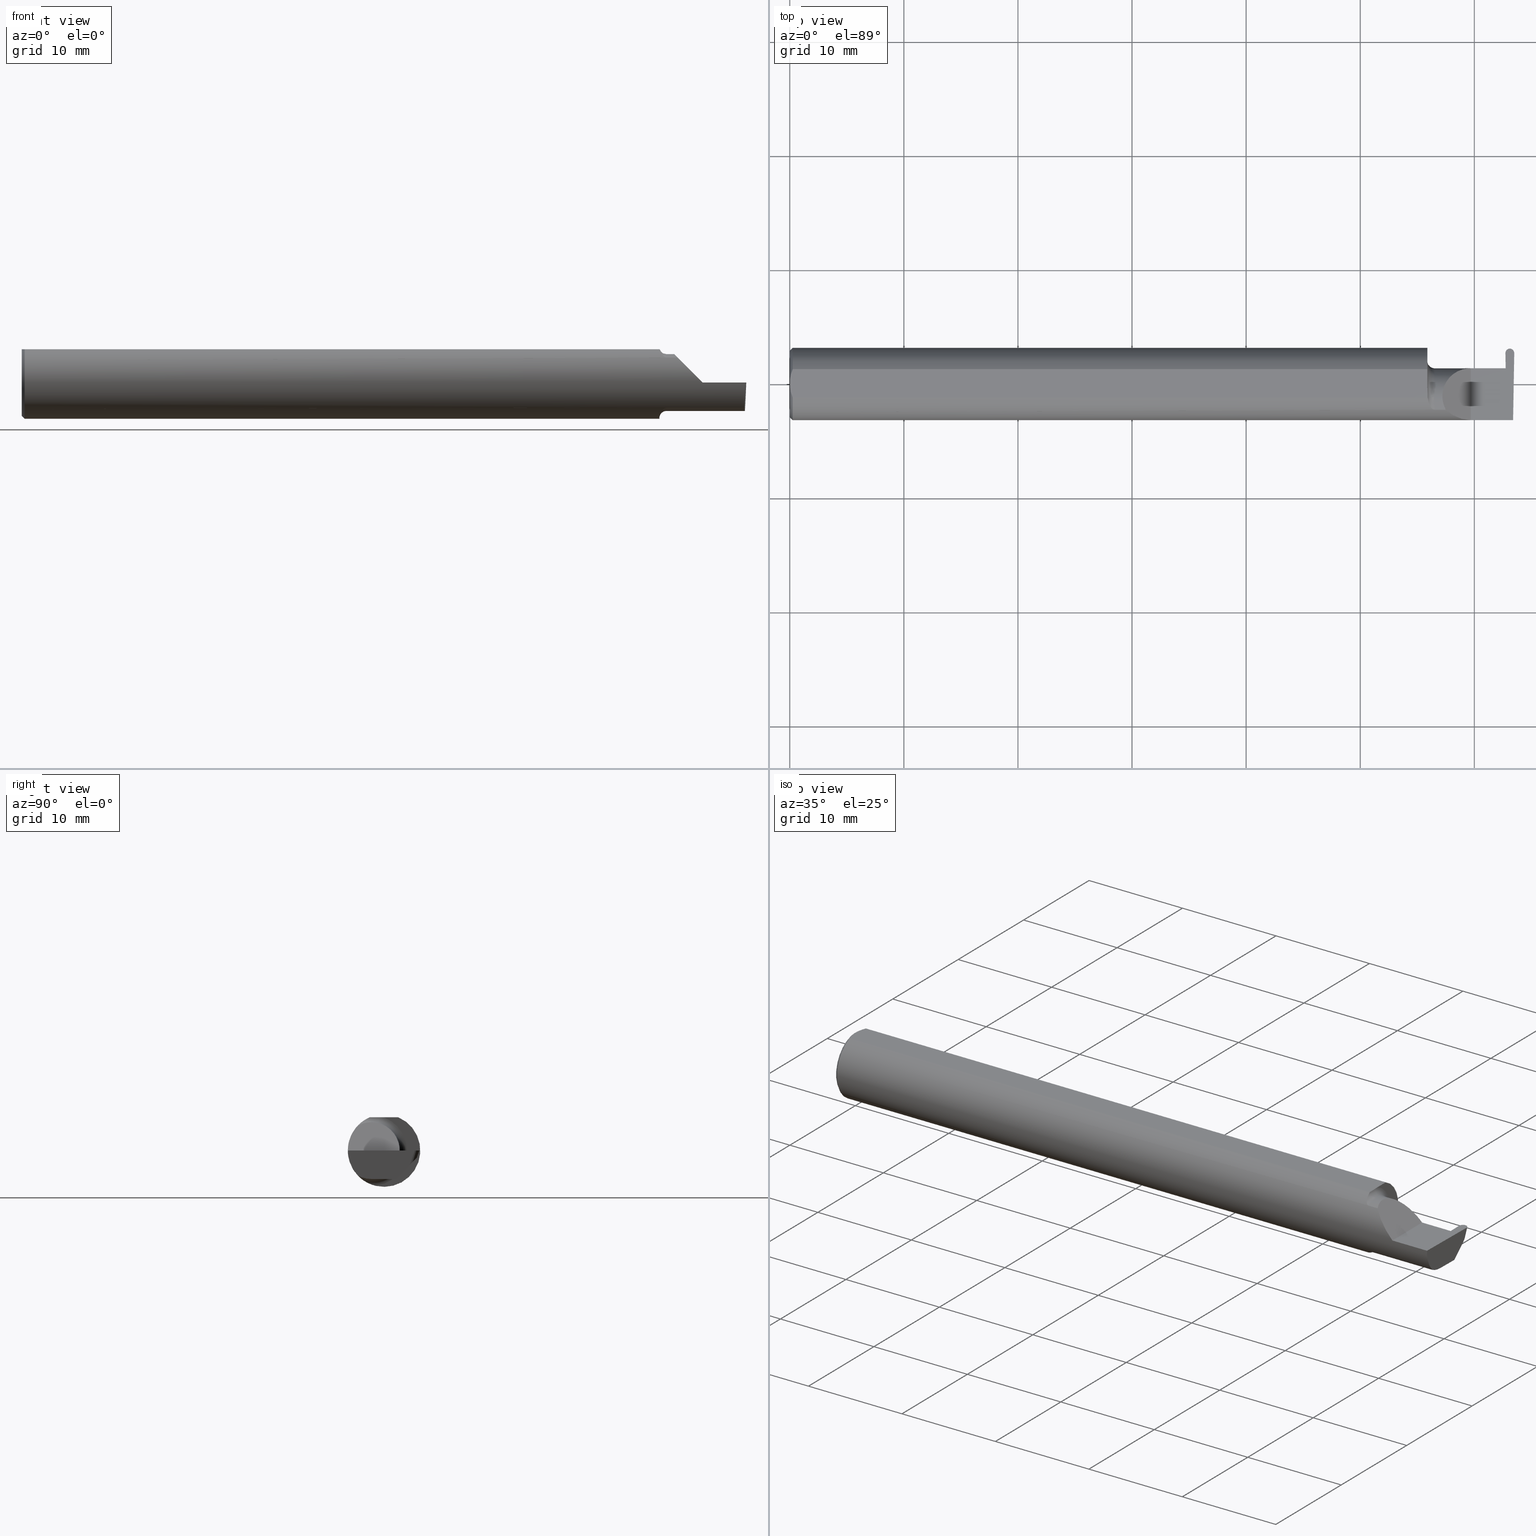
[diagram: canonical four-view strip — front | top / right | iso, engineering-drawing reading convention]
A machine part, canonical four-view strip (front | top / right | iso — engineering-drawing reading convention). The complete STEP part file that produces these views, byte-faithful:
ISO-10303-21;
HEADER;
FILE_DESCRIPTION (( 'STEP AP203' ),
    '1' );
FILE_NAME ('221936-GFR030Q-4.STEP',
    '2024-06-17T21:09:49',
    ( '' ),
    ( '' ),
    'SwSTEP 2.0',
    'SolidWorks 2022',
    '' );
FILE_SCHEMA (( 'CONFIG_CONTROL_DESIGN' ));
ENDSEC;

DATA;
#1 = CARTESIAN_POINT ( 'NONE',  ( 2.493303259308029318, 0.1129364828361203443, -0.02479965444492767193 ) ) ;
#2 = FACE_OUTER_BOUND ( 'NONE', #378, .T. ) ;
#3 = VERTEX_POINT ( 'NONE', #39 ) ;
#4 = PLANE ( 'NONE',  #380 ) ;
#5 = DIRECTION ( 'NONE',  ( -0.03867711768363032987, -0.3253245514560478280, -0.9448111011136607340 ) ) ;
#6 = ORIENTED_EDGE ( 'NONE', *, *, #9, .F. ) ;
#7 = CARTESIAN_POINT ( 'NONE',  ( 2.469484345974817696, 0.1057354023860208880, 0.000000000000000000 ) ) ;
#8 = DIRECTION ( 'NONE',  ( 1.000000000000000000, 0.000000000000000000, 0.000000000000000000 ) ) ;
#9 = EDGE_CURVE ( 'NONE', #68, #562, #184, .T. ) ;
#10 = ORIENTED_EDGE ( 'NONE', *, *, #283, .F. ) ;
#11 = DIRECTION ( 'NONE',  ( -1.000000000000000000, -1.584044490014838108E-16, -0.000000000000000000 ) ) ;
#12 = VECTOR ( 'NONE', #151, 39.37007874015748143 ) ;
#13 = EDGE_CURVE ( 'NONE', #128, #426, #22, .T. ) ;
#14 = DIRECTION ( 'NONE',  ( 0.000000000000000000, 0.000000000000000000, -1.000000000000000000 ) ) ;
#15 = ORIENTED_EDGE ( 'NONE', *, *, #61, .T. ) ;
#16 = CARTESIAN_POINT ( 'NONE',  ( 2.493664221452986052, -0.06028551311893171061, -0.09800000000000015643 ) ) ;
#17 = LINE ( 'NONE', #492, #534 ) ;
#18 = ORIENTED_EDGE ( 'NONE', *, *, #516, .F. ) ;
#19 = CARTESIAN_POINT ( 'NONE',  ( 2.463961723292897421, 0.05376127692546270320, -0.006836134426925991742 ) ) ;
#20 = DIRECTION ( 'NONE',  ( 0.000000000000000000, -0.03489949670250104552, -0.9993908270190957621 ) ) ;
#21 = ORIENTED_EDGE ( 'NONE', *, *, #61, .F. ) ;
#22 = CIRCLE ( 'NONE', #476, 0.09800000000000012867 ) ;
#23 = COORDINATED_UNIVERSAL_TIME_OFFSET ( 8, 0, .BEHIND. ) ;
#24 = CARTESIAN_POINT ( 'NONE',  ( 2.494820567471968786, -0.1250000000000000000, -0.03254916765648427357 ) ) ;
#25 = ORIENTED_EDGE ( 'NONE', *, *, #383, .T. ) ;
#26 = PERSON_AND_ORGANIZATION_ROLE ( 'design_owner' ) ;
#27 = LINE ( 'NONE', #79, #251 ) ;
#28 = ORIENTED_EDGE ( 'NONE', *, *, #316, .T. ) ;
#29 = B_SPLINE_CURVE_WITH_KNOTS ( 'NONE', 3,
 ( #157, #581, #530, #84, #36, #42 ),
 .UNSPECIFIED., .F., .F.,
 ( 4, 2, 4 ),
 ( 0.001061950514642623312, 0.001696734447512964709, 0.002331518380383306322 ),
 .UNSPECIFIED. ) ;
#30 = APPROVAL_STATUS ( 'not_yet_approved' ) ;
#31 = DIRECTION ( 'NONE',  ( 0.000000000000000000, 0.9455185755993167351, -0.3255681544571566999 ) ) ;
#32 = CYLINDRICAL_SURFACE ( 'NONE', #651, 0.09800000000000008704 ) ;
#33 = DIRECTION ( 'NONE',  ( 0.000000000000000000, 0.000000000000000000, -1.000000000000000000 ) ) ;
#34 = EDGE_CURVE ( 'NONE', #44, #296, #689, .T. ) ;
#35 = AXIS2_PLACEMENT_3D ( 'NONE', #391, #610, #122 ) ;
#36 = CARTESIAN_POINT ( 'NONE',  ( 1.541666659510484467E-16, -0.008419750986449443114, 0.1149999999999999356 ) ) ;
#37 = COORDINATED_UNIVERSAL_TIME_OFFSET ( 8, 0, .BEHIND. ) ;
#38 = CARTESIAN_POINT ( 'NONE',  ( 2.495957382595297869, -0.1250000000000000000, 0.000000000000000000 ) ) ;
#39 = CARTESIAN_POINT ( 'NONE',  ( 2.484590643401954679, 0.1219999999999999835, 0.000000000000000000 ) ) ;
#40 = CARTESIAN_POINT ( 'NONE',  ( 2.202426556614085484, -0.05801934803182666467, 0.1111534264545083334 ) ) ;
#41 = CC_DESIGN_PERSON_AND_ORGANIZATION_ASSIGNMENT ( #149, #528, ( #370 ) ) ;
#42 = CARTESIAN_POINT ( 'NONE',  ( 0.000000000000000000, 3.414809992080329023E-17, 0.1149999999999999217 ) ) ;
#43 = EDGE_CURVE ( 'NONE', #390, #138, #578, .T. ) ;
#44 = VERTEX_POINT ( 'NONE', #642 ) ;
#45 = CARTESIAN_POINT ( 'NONE',  ( 2.210996102358147475, -0.08116363444194610310, 0.09515685373905001521 ) ) ;
#46 = VECTOR ( 'NONE', #170, 39.37007874015748143 ) ;
#47 = AXIS2_PLACEMENT_3D ( 'NONE', #143, #623, #33 ) ;
#48 = DIRECTION ( 'NONE',  ( -0.7071067811865511255, 0.000000000000000000, 0.7071067811865439090 ) ) ;
#49 = DIRECTION ( 'NONE',  ( 0.000000000000000000, -0.3255681544571570885, -0.9455185755993166241 ) ) ;
#50 = ORIENTED_EDGE ( 'NONE', *, *, #495, .F. ) ;
#51 = CARTESIAN_POINT ( 'NONE',  ( 2.350000000000000089, -0.2500000000000000555, 1.836970198721028825E-17 ) ) ;
#52 = DIRECTION ( 'NONE',  ( 1.000000000000000000, 0.000000000000000000, 0.000000000000000000 ) ) ;
#53 = ORIENTED_EDGE ( 'NONE', *, *, #295, .F. ) ;
#54 = PRODUCT_DEFINITION_FORMATION_WITH_SPECIFIED_SOURCE ( 'ANY', '', #178, .NOT_KNOWN. ) ;
#55 = DIRECTION ( 'NONE',  ( 1.000000000000000000, 0.000000000000000000, -0.000000000000000000 ) ) ;
#56 = CARTESIAN_POINT ( 'NONE',  ( 2.481161349538949068, 0.07626679744728975807, -0.08582409597714681093 ) ) ;
#57 = ORIENTED_EDGE ( 'NONE', *, *, #419, .T. ) ;
#58 = CARTESIAN_POINT ( 'NONE',  ( 2.493948486141865484, -0.04399999999999965050, -0.09800000000000001765 ) ) ;
#59 = CARTESIAN_POINT ( 'NONE',  ( 2.225000000000000089, -0.09042045454545413752, 0.08630840862739540265 ) ) ;
#60 = VERTEX_POINT ( 'NONE', #572 ) ;
#61 = EDGE_CURVE ( 'NONE', #138, #100, #239, .T. ) ;
#62 = CARTESIAN_POINT ( 'NONE',  ( 2.205932841370987774, -0.07048791403321974514, -0.1034389270157553553 ) ) ;
#63 = LINE ( 'NONE', #327, #136 ) ;
#64 = VERTEX_POINT ( 'NONE', #691 ) ;
#65 = AXIS2_PLACEMENT_3D ( 'NONE', #454, #401, #584 ) ;
#66 = DIRECTION ( 'NONE',  ( 0.000000000000000000, 0.000000000000000000, 1.000000000000000000 ) ) ;
#67 = DIRECTION ( 'NONE',  ( 0.03867711768362944863, -0.3253245514560478835, -0.9448111011136606230 ) ) ;
#68 = VERTEX_POINT ( 'NONE', #199 ) ;
#69 = CARTESIAN_POINT ( 'NONE',  ( 0.01000000000000042348, 0.000000000000000000, 0.000000000000000000 ) ) ;
#70 = CARTESIAN_POINT ( 'NONE',  ( 2.224355642859858317, -0.01728409361947863543, 0.1256443571401404113 ) ) ;
#71 = ORIENTED_EDGE ( 'NONE', *, *, #692, .T. ) ;
#72 = APPLICATION_PROTOCOL_DEFINITION ( 'international standard', 'config_control_design', 1994, #415 ) ;
#73 = DIRECTION ( 'NONE',  ( -0.03549161113179501170, 0.03487750912278154980, 0.9987611851171729338 ) ) ;
#74 = ORIENTED_EDGE ( 'NONE', *, *, #13, .F. ) ;
#75 = CARTESIAN_POINT ( 'NONE',  ( 2.200000000000000178, 0.000000000000000000, 0.000000000000000000 ) ) ;
#76 = CIRCLE ( 'NONE', #47, 0.1149999999999997274 ) ;
#77 = ORIENTED_EDGE ( 'NONE', *, *, #620, .T. ) ;
#78 = CARTESIAN_POINT ( 'NONE',  ( 2.484734615000000257, 0.1136989410075409934, -0.02403719627350702631 ) ) ;
#79 = CARTESIAN_POINT ( 'NONE',  ( 2.470387390782552650, 0.05400000000000000633, 0.000000000000000000 ) ) ;
#80 = ORIENTED_EDGE ( 'NONE', *, *, #43, .T. ) ;
#81 = DATE_AND_TIME ( #626, #394 ) ;
#82 = ADVANCED_FACE ( 'NONE', ( #416 ), #32, .T. ) ;
#83 = LINE ( 'NONE', #244, #554 ) ;
#84 = CARTESIAN_POINT ( 'NONE',  ( 0.0009328476361608245343, -0.01672844127736827086, 0.1149999999999999217 ) ) ;
#85 = PERSON_AND_ORGANIZATION ( #508, #701 ) ;
#86 = DIRECTION ( 'NONE',  ( 0.000000000000000000, 1.000000000000000000, 0.000000000000000000 ) ) ;
#87 = VECTOR ( 'NONE', #73, 39.37007874015748143 ) ;
#88 = CC_DESIGN_APPROVAL ( #163, ( #294 ) ) ;
#89 = DIRECTION ( 'NONE',  ( 0.000000000000000000, 0.000000000000000000, -1.000000000000000000 ) ) ;
#90 = B_SPLINE_CURVE_WITH_KNOTS ( 'NONE', 3,
 ( #19, #115, #605, #376 ),
 .UNSPECIFIED., .F., .F.,
 ( 4, 4 ),
 ( 0.000000000000000000, 1.000000000000000000 ),
 .UNSPECIFIED. ) ;
#91 = EDGE_CURVE ( 'NONE', #44, #307, #29, .T. ) ;
#92 = LINE ( 'NONE', #269, #488 ) ;
#93 = ADVANCED_FACE ( 'NONE', ( #250 ), #680, .T. ) ;
#94 = ORIENTED_EDGE ( 'NONE', *, *, #137, .T. ) ;
#95 = DIRECTION ( 'NONE',  ( 1.000000000000000000, 1.584044490014838108E-16, 0.000000000000000000 ) ) ;
#96 = CARTESIAN_POINT ( 'NONE',  ( 2.204267307214414107, -0.06631395538221017405, 0.1063681193389255375 ) ) ;
#97 = TOROIDAL_SURFACE ( 'NONE', #624, 0.1230000000000000676, 0.02499999999999993894 ) ;
#98 =( GEOMETRIC_REPRESENTATION_CONTEXT ( 3 ) GLOBAL_UNCERTAINTY_ASSIGNED_CONTEXT ( ( #569 ) ) GLOBAL_UNIT_ASSIGNED_CONTEXT ( ( #453, #355, #521 ) ) REPRESENTATION_CONTEXT ( 'NONE', 'WORKASPACE' ) );
#99 = CARTESIAN_POINT ( 'NONE',  ( 2.476165970691971197, 0.1129364828361193451, -0.02479965444492871277 ) ) ;
#100 = VERTEX_POINT ( 'NONE', #103 ) ;
#101 = EDGE_CURVE ( 'NONE', #44, #114, #324, .T. ) ;
#102 = DIRECTION ( 'NONE',  ( 0.03547001781079530541, 0.000000000000000000, -0.9993707409347653003 ) ) ;
#103 = CARTESIAN_POINT ( 'NONE',  ( 2.263691591372603895, -0.09042045454545426242, 0.08630840862739529162 ) ) ;
#104 = ORIENTED_EDGE ( 'NONE', *, *, #470, .T. ) ;
#105 = CARTESIAN_POINT ( 'NONE',  ( 2.475584878715685111, 0.1219999999999998724, 1.127860089025957087E-18 ) ) ;
#106 = EDGE_LOOP ( 'NONE', ( #172, #140, #219, #224, #154, #467 ) ) ;
#107 = AXIS2_PLACEMENT_3D ( 'NONE', #403, #622, #570 ) ;
#108 = ORIENTED_EDGE ( 'NONE', *, *, #336, .F. ) ;
#109 = CONICAL_SURFACE ( 'NONE', #371, 0.1149999999999997274, 0.7853981633974407295 ) ;
#110 = ADVANCED_FACE ( 'NONE', ( #2 ), #212, .F. ) ;
#111 = CARTESIAN_POINT ( 'NONE',  ( 2.469318218598224313, 0.1152528334169432706, 1.895304614445361654E-18 ) ) ;
#112 = CARTESIAN_POINT ( 'NONE',  ( 2.480873837082679945, 0.1387967110607151167, 0.09577595931909234361 ) ) ;
#113 = ADVANCED_FACE ( 'NONE', ( #648 ), #109, .T. ) ;
#114 = VERTEX_POINT ( 'NONE', #389 ) ;
#115 = CARTESIAN_POINT ( 'NONE',  ( 2.464041297651076157, 0.05384085128364179962, -0.004557422951283986688 ) ) ;
#116 = CARTESIAN_POINT ( 'NONE',  ( 0.000000000000000000, 0.04898979485566374442, 0.1149999999999999217 ) ) ;
#117 = ORIENTED_EDGE ( 'NONE', *, *, #607, .F. ) ;
#118 = CARTESIAN_POINT ( 'NONE',  ( 2.473883320168691835, 0.03973613728104883475, -0.09800000000000000377 ) ) ;
#119 = FACE_OUTER_BOUND ( 'NONE', #413, .T. ) ;
#120 = ORIENTED_EDGE ( 'NONE', *, *, #546, .T. ) ;
#121 = CIRCLE ( 'NONE', #523, 0.1230000000000000676 ) ;
#122 = DIRECTION ( 'NONE',  ( 0.000000000000000000, 0.000000000000000000, 1.000000000000000000 ) ) ;
#123 = DIRECTION ( 'NONE',  ( 0.000000000000000000, -0.9455185755993167351, 0.3255681544571566999 ) ) ;
#124 = ORIENTED_EDGE ( 'NONE', *, *, #484, .T. ) ;
#125 = DIRECTION ( 'NONE',  ( -1.000000000000000000, -1.584044490014838108E-16, -0.000000000000000000 ) ) ;
#126 = CARTESIAN_POINT ( 'NONE',  ( 2.473987104431409012, -0.04400000000000004602, -0.09800000000000005929 ) ) ;
#127 = B_SPLINE_CURVE_WITH_KNOTS ( 'NONE', 3,
 ( #637, #40, #96, #422, #45, #263, #698, #474, #209, #271 ),
 .UNSPECIFIED., .F., .F.,
 ( 4, 2, 2, 2, 4 ),
 ( 5.067393806054781801E-07, 0.0007430328995834715403, 0.001114295979684904988, 0.001299927519735621277, 0.001485559059786337567 ),
 .UNSPECIFIED. ) ;
#128 = VERTEX_POINT ( 'NONE', #59 ) ;
#129 = LINE ( 'NONE', #563, #192 ) ;
#130 = CARTESIAN_POINT ( 'NONE',  ( 2.200000000000000178, -0.02763636363636349721, -0.1219066503721543682 ) ) ;
#131 = EDGE_LOOP ( 'NONE', ( #399, #74, #643, #94, #433, #354, #175, #538, #182, #179 ) ) ;
#132 = AXIS2_PLACEMENT_3D ( 'NONE', #606, #8, #14 ) ;
#133 = ADVANCED_FACE ( 'NONE', ( #282 ), #342, .T. ) ;
#134 = VECTOR ( 'NONE', #183, 39.37007874015748854 ) ;
#135 = FACE_OUTER_BOUND ( 'NONE', #608, .T. ) ;
#136 = VECTOR ( 'NONE', #218, 39.37007874015748854 ) ;
#137 = EDGE_CURVE ( 'NONE', #100, #509, #313, .T. ) ;
#138 = VERTEX_POINT ( 'NONE', #438 ) ;
#139 = DIRECTION ( 'NONE',  ( 0.000000000000000000, -0.7071067811865514585, 0.7071067811865435759 ) ) ;
#140 = ORIENTED_EDGE ( 'NONE', *, *, #187, .T. ) ;
#141 = EDGE_LOOP ( 'NONE', ( #328, #321, #288, #28, #325 ) ) ;
#142 = DATE_AND_TIME ( #411, #667 ) ;
#143 = CARTESIAN_POINT ( 'NONE',  ( 0.000000000000000000, 0.000000000000000000, 0.000000000000000000 ) ) ;
#144 = ORIENTED_EDGE ( 'NONE', *, *, #43, .F. ) ;
#145 = DATE_TIME_ROLE ( 'classification_date' ) ;
#146 = CARTESIAN_POINT ( 'NONE',  ( 1.642610067308552155E-16, 0.01684316307400865464, 0.1149999999999999217 ) ) ;
#147 = DIRECTION ( 'NONE',  ( 0.000000000000000000, -1.000000000000000000, 0.000000000000000000 ) ) ;
#148 = CARTESIAN_POINT ( 'NONE',  ( 2.672413070268786939, -0.04399999999999965050, -0.09800000000000001765 ) ) ;
#149 = PERSON_AND_ORGANIZATION ( #508, #701 ) ;
#150 = CARTESIAN_POINT ( 'NONE',  ( 2.471482284735846857, 0.08893015498921685857, -0.04880598229183146647 ) ) ;
#151 = DIRECTION ( 'NONE',  ( -0.03867711768363032293, -0.3253245514560478280, -0.9448111011136606230 ) ) ;
#152 = AXIS2_PLACEMENT_3D ( 'NONE', #302, #306, #348 ) ;
#153 =( BOUNDED_CURVE ( )  B_SPLINE_CURVE ( 3, ( #480, #1, #323, #695 ),
 .UNSPECIFIED., .F., .T. ) 
 B_SPLINE_CURVE_WITH_KNOTS ( ( 4, 4 ),
 ( 3.177640875404656562, 4.698656506723038362 ),
 .UNSPECIFIED. ) 
 CURVE ( )  GEOMETRIC_REPRESENTATION_ITEM ( )  RATIONAL_B_SPLINE_CURVE ( ( 1.000000000000000000, 0.8163240481326591302, 0.8163240481326591302, 1.000000000000000000 ) ) 
 REPRESENTATION_ITEM ( '' )  );
#154 = ORIENTED_EDGE ( 'NONE', *, *, #482, .F. ) ;
#155 = PERSON_AND_ORGANIZATION ( #508, #701 ) ;
#156 = DIRECTION ( 'NONE',  ( -0.7071067811865439090, 0.000000000000000000, -0.7071067811865511255 ) ) ;
#157 = CARTESIAN_POINT ( 'NONE',  ( 0.01000000000000042348, -0.04898979485566374442, 0.1149999999999999217 ) ) ;
#158 = EDGE_LOOP ( 'NONE', ( #490, #362, #347, #547, #237 ) ) ;
#159 = CARTESIAN_POINT ( 'NONE',  ( 2.214104893754833991, -0.08507551663519469232, -0.09161800969921159166 ) ) ;
#160 = VERTEX_POINT ( 'NONE', #663 ) ;
#161 = EDGE_CURVE ( 'NONE', #532, #429, #63, .T. ) ;
#162 = ORIENTED_EDGE ( 'NONE', *, *, #187, .F. ) ;
#163 = APPROVAL ( #30, 'UNSPECIFIED' ) ;
#164 = LINE ( 'NONE', #644, #223 ) ;
#165 = LOCAL_TIME ( 14, 9, 49.00000000000000000, #37 ) ;
#166 = ADVANCED_FACE ( 'NONE', ( #392 ), #431, .F. ) ;
#167 = DIRECTION ( 'NONE',  ( -1.000000000000000000, -1.584044490014838108E-16, -0.000000000000000000 ) ) ;
#168 = AXIS2_PLACEMENT_3D ( 'NONE', #420, #424, #49 ) ;
#169 = ORIENTED_EDGE ( 'NONE', *, *, #101, .F. ) ;
#170 = DIRECTION ( 'NONE',  ( 1.000000000000000000, -0.000000000000000000, -0.000000000000000000 ) ) ;
#171 = FACE_OUTER_BOUND ( 'NONE', #335, .T. ) ;
#172 = ORIENTED_EDGE ( 'NONE', *, *, #101, .T. ) ;
#173 = CARTESIAN_POINT ( 'NONE',  ( 2.470630317148074795, 0.05376127692545597941, -0.006836134426923960380 ) ) ;
#174 = LINE ( 'NONE', #497, #653 ) ;
#175 = ORIENTED_EDGE ( 'NONE', *, *, #557, .F. ) ;
#176 = FACE_OUTER_BOUND ( 'NONE', #517, .T. ) ;
#177 = CARTESIAN_POINT ( 'NONE',  ( 2.493948486141865484, -0.04399999999999965050, -0.09800000000000001765 ) ) ;
#178 = PRODUCT ( '221936-GFR030Q-4', '221936-GFR030Q-4', '', ( #397 ) ) ;
#179 = ORIENTED_EDGE ( 'NONE', *, *, #546, .F. ) ;
#180 = AXIS2_PLACEMENT_3D ( 'NONE', #412, #139, #196 ) ;
#181 = CARTESIAN_POINT ( 'NONE',  ( 2.470630317148074795, 0.05376127692545597941, -0.006836134426923960380 ) ) ;
#182 = ORIENTED_EDGE ( 'NONE', *, *, #419, .F. ) ;
#183 = DIRECTION ( 'NONE',  ( -0.03867711768362944169, 0.3253245514560478280, 0.9448111011136606230 ) ) ;
#184 =( BOUNDED_CURVE ( )  B_SPLINE_CURVE ( 3, ( #410, #524, #312, #421 ),
 .UNSPECIFIED., .F., .T. ) 
 B_SPLINE_CURVE_WITH_KNOTS ( ( 4, 4 ),
 ( 1.677524580234105667, 3.253450286950869685 ),
 .UNSPECIFIED. ) 
 CURVE ( )  GEOMETRIC_REPRESENTATION_ITEM ( )  RATIONAL_B_SPLINE_CURVE ( ( 1.000000000000000000, 0.8035272986452609567, 0.8035272986452609567, 1.000000000000000000 ) ) 
 REPRESENTATION_ITEM ( '' )  );
#185 = LINE ( 'NONE', #627, #393 ) ;
#186 = ORIENTED_EDGE ( 'NONE', *, *, #586, .T. ) ;
#187 = EDGE_CURVE ( 'NONE', #114, #407, #225, .T. ) ;
#188 = LINE ( 'NONE', #675, #598 ) ;
#189 = EDGE_CURVE ( 'NONE', #440, #234, #445, .T. ) ;
#190 = ORIENTED_EDGE ( 'NONE', *, *, #586, .F. ) ;
#191 = LINE ( 'NONE', #301, #134 ) ;
#192 = VECTOR ( 'NONE', #235, 39.37007874015748143 ) ;
#193 = LINE ( 'NONE', #408, #87 ) ;
#194 = CARTESIAN_POINT ( 'NONE',  ( 0.01000000000000042348, 0.000000000000000000, 0.000000000000000000 ) ) ;
#195 = COORDINATED_UNIVERSAL_TIME_OFFSET ( 8, 0, .BEHIND. ) ;
#196 = DIRECTION ( 'NONE',  ( 0.000000000000000000, -0.7071067811865435759, -0.7071067811865514585 ) ) ;
#197 = DIRECTION ( 'NONE',  ( 1.000000000000000000, 0.000000000000000000, 0.000000000000000000 ) ) ;
#198 = DIRECTION ( 'NONE',  ( 0.000000000000000000, 0.000000000000000000, -1.000000000000000000 ) ) ;
#199 = CARTESIAN_POINT ( 'NONE',  ( 2.499984884025182375, 0.1057354023860208464, 0.000000000000000000 ) ) ;
#200 = SHAPE_DEFINITION_REPRESENTATION ( #449, #596 ) ;
#201 = LINE ( 'NONE', #535, #418 ) ;
#202 = VECTOR ( 'NONE', #358, 39.37007874015748143 ) ;
#203 = DIRECTION ( 'NONE',  ( -1.000000000000000000, -1.584044490014838108E-16, -0.000000000000000000 ) ) ;
#204 = FACE_OUTER_BOUND ( 'NONE', #455, .T. ) ;
#205 = DATE_AND_TIME ( #694, #541 ) ;
#206 = CARTESIAN_POINT ( 'NONE',  ( 2.470754586044551893, 0.1028225311217308702, -0.03491360615931730221 ) ) ;
#207 = CC_DESIGN_PERSON_AND_ORGANIZATION_ASSIGNMENT ( #305, #681, ( #294 ) ) ;
#208 = ORIENTED_EDGE ( 'NONE', *, *, #243, .T. ) ;
#209 = CARTESIAN_POINT ( 'NONE',  ( 2.222488493957806899, -0.09042045454585179165, 0.08630840862697893023 ) ) ;
#210 = VERTEX_POINT ( 'NONE', #177 ) ;
#211 = DIRECTION ( 'NONE',  ( -0.001239419280281402755, 0.9999992319196288060, 0.000000000000000000 ) ) ;
#212 = PLANE ( 'NONE',  #406 ) ;
#213 = EDGE_CURVE ( 'NONE', #60, #566, #333, .T. ) ;
#214 = APPROVAL ( #665, 'UNSPECIFIED' ) ;
#215 = ORIENTED_EDGE ( 'NONE', *, *, #690, .F. ) ;
#216 = EDGE_CURVE ( 'NONE', #128, #100, #174, .T. ) ;
#217 = CARTESIAN_POINT ( 'NONE',  ( -3.937007874019685528E-05, 0.03973613728104881393, -0.09800000000000001765 ) ) ;
#218 = DIRECTION ( 'NONE',  ( -0.03701368837992279753, 0.7066222423871550973, 0.7066222423871629799 ) ) ;
#219 = ORIENTED_EDGE ( 'NONE', *, *, #283, .T. ) ;
#220 = CARTESIAN_POINT ( 'NONE',  ( 2.484590643401954679, 0.1219999999999999835, 0.000000000000000000 ) ) ;
#221 = CARTESIAN_POINT ( 'NONE',  ( 0.000000000000000000, 0.000000000000000000, 0.000000000000000000 ) ) ;
#222 = VECTOR ( 'NONE', #548, 39.37007874015747433 ) ;
#223 = VECTOR ( 'NONE', #11, 39.37007874015748143 ) ;
#224 = ORIENTED_EDGE ( 'NONE', *, *, #189, .T. ) ;
#225 = B_SPLINE_CURVE_WITH_KNOTS ( 'NONE', 3,
 ( #385, #279, #599, #612, #338, #227 ),
 .UNSPECIFIED., .F., .F.,
 ( 4, 2, 4 ),
 ( 0.009319464280412737694, 0.009934044568948304649, 0.01054862485748387160 ),
 .UNSPECIFIED. ) ;
#226 = CARTESIAN_POINT ( 'NONE',  ( 2.217439721641150552, -0.08786602687380729027, -0.08891702384475598520 ) ) ;
#227 = CARTESIAN_POINT ( 'NONE',  ( 2.200000000000000178, -0.0003651515414568704703, 0.1149999999999999217 ) ) ;
#228 = ORIENTED_EDGE ( 'NONE', *, *, #383, .F. ) ;
#229 =( BOUNDED_CURVE ( )  B_SPLINE_CURVE ( 3, ( #220, #105, #111, #7 ),
 .UNSPECIFIED., .F., .T. ) 
 B_SPLINE_CURVE_WITH_KNOTS ( ( 4, 4 ),
 ( 6.171327673818510995, 7.747253380535275902 ),
 .UNSPECIFIED. ) 
 CURVE ( )  GEOMETRIC_REPRESENTATION_ITEM ( )  RATIONAL_B_SPLINE_CURVE ( ( 1.000000000000000000, 0.8035272986452608457, 0.8035272986452608457, 1.000000000000000000 ) ) 
 REPRESENTATION_ITEM ( '' )  );
#230 = EDGE_CURVE ( 'NONE', #566, #429, #17, .T. ) ;
#231 = DIRECTION ( 'NONE',  ( 0.000000000000000000, 0.000000000000000000, -1.000000000000000000 ) ) ;
#232 = LINE ( 'NONE', #236, #679 ) ;
#233 = ADVANCED_FACE ( 'NONE', ( #171 ), #339, .T. ) ;
#234 = VERTEX_POINT ( 'NONE', #551 ) ;
#235 = DIRECTION ( 'NONE',  ( -0.01745240643727679480, -0.9998476951563912696, 0.000000000000000000 ) ) ;
#236 = CARTESIAN_POINT ( 'NONE',  ( 2.495862202245279438, 0.04836703517574777317, -0.08936910210530095433 ) ) ;
#237 = ORIENTED_EDGE ( 'NONE', *, *, #671, .T. ) ;
#238 = PLANE ( 'NONE',  #65 ) ;
#239 =( BOUNDED_CURVE ( )  B_SPLINE_CURVE ( 3, ( #310, #464, #489, #520 ),
 .UNSPECIFIED., .F., .T. ) 
 B_SPLINE_CURVE_WITH_KNOTS ( ( 4, 4 ),
 ( 4.712388980384689674, 5.474523801125207534 ),
 .UNSPECIFIED. ) 
 CURVE ( )  GEOMETRIC_REPRESENTATION_ITEM ( )  RATIONAL_B_SPLINE_CURVE ( ( 1.000000000000000000, 0.9521787881681380572, 0.9521787881681380572, 1.000000000000000000 ) ) 
 REPRESENTATION_ITEM ( '' )  );
#240 = ADVANCED_FACE ( 'NONE', ( #119 ), #97, .F. ) ;
#241 = ORIENTED_EDGE ( 'NONE', *, *, #360, .T. ) ;
#242 =( LENGTH_UNIT ( ) NAMED_UNIT ( * ) SI_UNIT ( $, .METRE. ) );
#243 = EDGE_CURVE ( 'NONE', #303, #555, #232, .T. ) ;
#244 = CARTESIAN_POINT ( 'NONE',  ( 2.469499189848784582, 0.1590914008552682946, 0.02135526357422078830 ) ) ;
#245 = ORIENTED_EDGE ( 'NONE', *, *, #34, .F. ) ;
#246 = MANIFOLD_SOLID_BREP ( 'Radii', #595 ) ;
#247 = APPROVAL_ROLE ( '' ) ;
#248 = CARTESIAN_POINT ( 'NONE',  ( 2.672413070268786939, -0.04399999999999965050, -0.09800000000000001765 ) ) ;
#249 = CC_DESIGN_APPROVAL ( #214, ( #54 ) ) ;
#250 = FACE_OUTER_BOUND ( 'NONE', #549, .T. ) ;
#251 = VECTOR ( 'NONE', #361, 39.37007874015748143 ) ;
#252 = APPLICATION_PROTOCOL_DEFINITION ( 'international standard', 'config_control_design', 1994, #560 ) ;
#253 = AXIS2_PLACEMENT_3D ( 'NONE', #278, #66, #55 ) ;
#254 = CARTESIAN_POINT ( 'NONE',  ( 2.493976598891079810, -0.1128945894460737925, -0.06276352435079125824 ) ) ;
#255 = CARTESIAN_POINT ( 'NONE',  ( 2.200000000000000178, 0.1249999999999999861, 0.000000000000000000 ) ) ;
#256 = PLANE ( 'NONE',  #180 ) ;
#257 = VERTEX_POINT ( 'NONE', #181 ) ;
#258 = APPROVAL_ROLE ( '' ) ;
#259 = CARTESIAN_POINT ( 'NONE',  ( 2.484734615000000257, 0.1136989410075409934, -0.02403719627350702631 ) ) ;
#260 = DIRECTION ( 'NONE',  ( 1.000000000000000000, 1.584044490014838108E-16, 0.000000000000000000 ) ) ;
#261 = CALENDAR_DATE ( 2024, 17, 6 ) ;
#262 = AXIS2_PLACEMENT_3D ( 'NONE', #255, #260, #374 ) ;
#263 = CARTESIAN_POINT ( 'NONE',  ( 2.214945076695470583, -0.08578123596776233983, 0.09094459933486033487 ) ) ;
#264 = AXIS2_PLACEMENT_3D ( 'NONE', #194, #197, #89 ) ;
#265 = ORIENTED_EDGE ( 'NONE', *, *, #91, .T. ) ;
#266 = ADVANCED_FACE ( 'NONE', ( #616 ), #545, .T. ) ;
#267 = DIRECTION ( 'NONE',  ( -1.000000000000000000, -0.000000000000000000, -0.000000000000000000 ) ) ;
#268 = APPROVAL_DATE_TIME ( #363, #214 ) ;
#269 = CARTESIAN_POINT ( 'NONE',  ( -3.937007874019685528E-05, 0.1219999999999999835, 0.000000000000000000 ) ) ;
#270 = ORIENTED_EDGE ( 'NONE', *, *, #671, .F. ) ;
#271 = CARTESIAN_POINT ( 'NONE',  ( 2.225000000000000089, -0.09042045454545413752, 0.08630840862739540265 ) ) ;
#272 = APPROVAL ( #473, 'UNSPECIFIED' ) ;
#273 = DIRECTION ( 'NONE',  ( -1.000000000000000000, -1.584044490014838108E-16, -0.000000000000000000 ) ) ;
#274 = ORIENTED_EDGE ( 'NONE', *, *, #189, .F. ) ;
#275 = LINE ( 'NONE', #285, #512 ) ;
#276 = CARTESIAN_POINT ( 'NONE',  ( 2.263691591372603895, -0.09042045454545426242, 0.08630840862739529162 ) ) ;
#277 = ORIENTED_EDGE ( 'NONE', *, *, #344, .T. ) ;
#278 = CARTESIAN_POINT ( 'NONE',  ( 2.753179778023443269, 0.1250000000000000278, 0.1149999999999999217 ) ) ;
#279 = CARTESIAN_POINT ( 'NONE',  ( 2.201395249340555527, -0.04087966525207987339, 0.1149999999999999356 ) ) ;
#280 = ORIENTED_EDGE ( 'NONE', *, *, #638, .T. ) ;
#281 = CARTESIAN_POINT ( 'NONE',  ( 2.225000000000000089, -0.09042045454545417915, -0.08630840862739537489 ) ) ;
#282 = FACE_OUTER_BOUND ( 'NONE', #158, .T. ) ;
#283 = EDGE_CURVE ( 'NONE', #407, #440, #188, .T. ) ;
#284 = ORIENTED_EDGE ( 'NONE', *, *, #557, .T. ) ;
#285 = CARTESIAN_POINT ( 'NONE',  ( 0.000000000000000000, 0.000000000000000000, -0.1149999999999997274 ) ) ;
#286 = ADVANCED_FACE ( 'NONE', ( #135 ), #511, .F. ) ;
#287 = CARTESIAN_POINT ( 'NONE',  ( 2.225000000000000089, -0.04400000000000009459, 0.000000000000000000 ) ) ;
#288 = ORIENTED_EDGE ( 'NONE', *, *, #161, .F. ) ;
#289 = LINE ( 'NONE', #506, #439 ) ;
#290 = CARTESIAN_POINT ( 'NONE',  ( 2.350000000000000089, 0.05400000000000000633, 3.673940397442056417E-17 ) ) ;
#291 = ORIENTED_EDGE ( 'NONE', *, *, #243, .F. ) ;
#292 = EDGE_CURVE ( 'NONE', #625, #532, #83, .T. ) ;
#293 = FACE_OUTER_BOUND ( 'NONE', #141, .T. ) ;
#294 = PRODUCT_DEFINITION ( 'UNKNOWN', '', #54, #304 ) ;
#295 = EDGE_CURVE ( 'NONE', #683, #60, #27, .T. ) ;
#296 = VERTEX_POINT ( 'NONE', #309 ) ;
#297 = PERSON_AND_ORGANIZATION ( #508, #701 ) ;
#298 = AXIS2_PLACEMENT_3D ( 'NONE', #248, #404, #353 ) ;
#299 = CARTESIAN_POINT ( 'NONE',  ( 2.350000000000000089, -0.2500000000000000555, 1.836970198721028825E-17 ) ) ;
#300 = ORIENTED_EDGE ( 'NONE', *, *, #668, .T. ) ;
#301 = CARTESIAN_POINT ( 'NONE',  ( 2.480873837082679945, 0.1532631452673846595, 0.09079476655589784062 ) ) ;
#302 = CARTESIAN_POINT ( 'NONE',  ( 2.500000000000000000, -0.2500000000000000555, 0.000000000000000000 ) ) ;
#303 = VERTEX_POINT ( 'NONE', #567 ) ;
#304 = DESIGN_CONTEXT ( 'detailed design', #415, 'design' ) ;
#305 = PERSON_AND_ORGANIZATION ( #508, #701 ) ;
#306 = DIRECTION ( 'NONE',  ( -1.224646799147352468E-16, 0.000000000000000000, -1.000000000000000000 ) ) ;
#307 = VERTEX_POINT ( 'NONE', #522 ) ;
#308 = VECTOR ( 'NONE', #561, 39.37007874015748143 ) ;
#309 = CARTESIAN_POINT ( 'NONE',  ( 0.01000000000000042348, 0.000000000000000000, -0.1250000000000000000 ) ) ;
#310 = CARTESIAN_POINT ( 'NONE',  ( 2.350000000000000089, -0.1250000000000000278, 1.836970198721028825E-17 ) ) ;
#311 = DIRECTION ( 'NONE',  ( 1.000000000000000000, -0.000000000000000000, -0.000000000000000000 ) ) ;
#312 = CARTESIAN_POINT ( 'NONE',  ( 2.493884351284315848, 0.1219999999999998030, -1.127860089025957857E-18 ) ) ;
#313 =( BOUNDED_CURVE ( )  B_SPLINE_CURVE ( 3, ( #276, #70, #398, #290 ),
 .UNSPECIFIED., .F., .T. ) 
 B_SPLINE_CURVE_WITH_KNOTS ( ( 4, 4 ),
 ( 5.789722842198297137, 7.853981633974482790 ),
 .UNSPECIFIED. ) 
 CURVE ( )  GEOMETRIC_REPRESENTATION_ITEM ( )  RATIONAL_B_SPLINE_CURVE ( ( 1.000000000000000000, 0.6753281001527247085, 0.6753281001527247085, 1.000000000000000000 ) ) 
 REPRESENTATION_ITEM ( '' )  );
#314 = DATE_AND_TIME ( #687, #165 ) ;
#315 = ADVANCED_FACE ( 'NONE', ( #465 ), #576, .F. ) ;
#316 = EDGE_CURVE ( 'NONE', #532, #257, #461, .T. ) ;
#317 = VERTEX_POINT ( 'NONE', #130 ) ;
#318 = COORDINATED_UNIVERSAL_TIME_OFFSET ( 8, 0, .BEHIND. ) ;
#319 = FACE_OUTER_BOUND ( 'NONE', #601, .T. ) ;
#320 = CARTESIAN_POINT ( 'NONE',  ( 0.000000000000000000, 3.414809992080329023E-17, 0.1149999999999999217 ) ) ;
#321 = ORIENTED_EDGE ( 'NONE', *, *, #230, .T. ) ;
#322 = PERSON_AND_ORGANIZATION ( #508, #701 ) ;
#323 = CARTESIAN_POINT ( 'NONE',  ( 2.498714643955449066, 0.1028225311217316196, -0.03491360615931652506 ) ) ;
#324 = LINE ( 'NONE', #540, #463 ) ;
#325 = ORIENTED_EDGE ( 'NONE', *, *, #336, .T. ) ;
#326 = CARTESIAN_POINT ( 'NONE',  ( 2.484878586598046724, 0.1219999999999999835, 0.000000000000000000 ) ) ;
#327 = CARTESIAN_POINT ( 'NONE',  ( 2.466798681797933490, 0.1783440490186122274, 0.04060791173756490846 ) ) ;
#328 = ORIENTED_EDGE ( 'NONE', *, *, #213, .T. ) ;
#329 = CARTESIAN_POINT ( 'NONE',  ( 2.218701570004388834, -0.08871861273376804857, -0.08806160498138418391 ) ) ;
#330 = DIRECTION ( 'NONE',  ( -0.03867711768362945557, 0.3253245514560478835, 0.9448111011136608450 ) ) ;
#331 = VERTEX_POINT ( 'NONE', #678 ) ;
#332 = CARTESIAN_POINT ( 'NONE',  ( 2.473919830754201410, 0.01027834358092145038, -0.09800000000000008704 ) ) ;
#333 = LINE ( 'NONE', #507, #222 ) ;
#334 = EDGE_CURVE ( 'NONE', #494, #307, #76, .T. ) ;
#335 = EDGE_LOOP ( 'NONE', ( #664, #280, #245, #265 ) ) ;
#336 = EDGE_CURVE ( 'NONE', #257, #60, #193, .T. ) ;
#337 = CARTESIAN_POINT ( 'NONE',  ( 2.469484345974817696, 0.1057354023860208880, 0.000000000000000000 ) ) ;
#338 = CARTESIAN_POINT ( 'NONE',  ( 2.200000000000000622, -0.008475349815580478230, 0.1149999999999999356 ) ) ;
#339 = CONICAL_SURFACE ( 'NONE', #132, 0.1149999999999997274, 0.7853981633974407295 ) ;
#340 = EDGE_LOOP ( 'NONE', ( #57, #588, #631, #452 ) ) ;
#341 = CARTESIAN_POINT ( 'NONE',  ( 2.493546555653489705, -0.09042045454545424854, -0.08630840862739526387 ) ) ;
#342 = CYLINDRICAL_SURFACE ( 'NONE', #350, 0.01529999999999999763 ) ;
#343 = ORIENTED_EDGE ( 'NONE', *, *, #565, .T. ) ;
#344 = EDGE_CURVE ( 'NONE', #68, #390, #185, .T. ) ;
#345 = LINE ( 'NONE', #299, #308 ) ;
#346 = ADVANCED_FACE ( 'NONE', ( #564 ), #256, .F. ) ;
#347 = ORIENTED_EDGE ( 'NONE', *, *, #536, .F. ) ;
#348 = DIRECTION ( 'NONE',  ( -1.000000000000000000, 0.000000000000000000, 1.224646799147352468E-16 ) ) ;
#349 = LOCAL_TIME ( 14, 9, 49.00000000000000000, #23 ) ;
#350 = AXIS2_PLACEMENT_3D ( 'NONE', #112, #330, #123 ) ;
#351 = B_SPLINE_CURVE_WITH_KNOTS ( 'NONE', 3,
 ( #320, #146, #479, #369 ),
 .UNSPECIFIED., .F., .F.,
 ( 4, 4 ),
 ( 0.002331518380383306322, 0.003601362264757408584 ),
 .UNSPECIFIED. ) ;
#352 = ORIENTED_EDGE ( 'NONE', *, *, #437, .F. ) ;
#353 = DIRECTION ( 'NONE',  ( 1.000000000000000000, 0.000000000000000000, -0.000000000000000000 ) ) ;
#354 = ORIENTED_EDGE ( 'NONE', *, *, #620, .F. ) ;
#355 =( NAMED_UNIT ( * ) PLANE_ANGLE_UNIT ( ) SI_UNIT ( $, .RADIAN. ) );
#356 = DIRECTION ( 'NONE',  ( 1.000000000000000000, 1.584044490014838108E-16, 0.000000000000000000 ) ) ;
#357 = EDGE_CURVE ( 'NONE', #317, #440, #486, .T. ) ;
#358 = DIRECTION ( 'NONE',  ( -1.000000000000000000, -0.000000000000000000, -0.000000000000000000 ) ) ;
#359 = ORIENTED_EDGE ( 'NONE', *, *, #482, .T. ) ;
#360 = EDGE_CURVE ( 'NONE', #655, #390, #696, .T. ) ;
#361 = DIRECTION ( 'NONE',  ( 1.000000000000000000, 2.759690214555744741E-15, -0.000000000000000000 ) ) ;
#362 = ORIENTED_EDGE ( 'NONE', *, *, #230, .F. ) ;
#363 = DATE_AND_TIME ( #261, #349 ) ;
#364 = CARTESIAN_POINT ( 'NONE',  ( 2.225000000000000089, -0.09042045454545417915, -0.08630840862739537489 ) ) ;
#365 = EDGE_CURVE ( 'NONE', #407, #317, #121, .T. ) ;
#366 = LINE ( 'NONE', #582, #579 ) ;
#367 = CC_DESIGN_DATE_AND_TIME_ASSIGNMENT ( #142, #629, ( #294 ) ) ;
#368 = EDGE_CURVE ( 'NONE', #307, #494, #699, .T. ) ;
#369 = CARTESIAN_POINT ( 'NONE',  ( 0.01000000000000042348, 0.04898979485566374442, 0.1149999999999999217 ) ) ;
#370 = SECURITY_CLASSIFICATION ( '', '', #697 ) ;
#371 = AXIS2_PLACEMENT_3D ( 'NONE', #221, #450, #558 ) ;
#372 = CARTESIAN_POINT ( 'NONE',  ( 2.474180957929539737, -2.420508663812221517, -0.02047232740206407151 ) ) ;
#373 = ORIENTED_EDGE ( 'NONE', *, *, #365, .T. ) ;
#374 = DIRECTION ( 'NONE',  ( -1.584044490014838108E-16, 1.000000000000000000, 0.000000000000000000 ) ) ;
#375 = ORIENTED_EDGE ( 'NONE', *, *, #161, .T. ) ;
#376 = CARTESIAN_POINT ( 'NONE',  ( 2.464200446367434516, 0.05399999999999999245, 0.000000000000000000 ) ) ;
#377 = DIRECTION ( 'NONE',  ( 2.758009085841372013E-15, -0.9993908270190957621, 0.03489949670250104552 ) ) ;
#378 = EDGE_LOOP ( 'NONE', ( #108, #284, #77, #542 ) ) ;
#379 = CARTESIAN_POINT ( 'NONE',  ( 2.221593478233292007, -0.08999923832592909845, -0.08675238105120963716 ) ) ;
#380 = AXIS2_PLACEMENT_3D ( 'NONE', #502, #657, #499 ) ;
#381 = VECTOR ( 'NONE', #519, 39.37007874015748143 ) ;
#382 = VERTEX_POINT ( 'NONE', #126 ) ;
#383 = EDGE_CURVE ( 'NONE', #138, #509, #345, .T. ) ;
#384 = FACE_OUTER_BOUND ( 'NONE', #646, .T. ) ;
#385 = CARTESIAN_POINT ( 'NONE',  ( 2.201278290187167919, -0.04898979485481827489, 0.1149999999999999217 ) ) ;
#386 = ADVANCED_FACE ( 'NONE', ( #293 ), #238, .F. ) ;
#387 = ORIENTED_EDGE ( 'NONE', *, *, #9, .T. ) ;
#388 = DIRECTION ( 'NONE',  ( 1.000000000000000000, 0.000000000000000000, 0.000000000000000000 ) ) ;
#389 = CARTESIAN_POINT ( 'NONE',  ( 2.201278290187167919, -0.04898979485481827489, 0.1149999999999999217 ) ) ;
#390 = VERTEX_POINT ( 'NONE', #587 ) ;
#391 = CARTESIAN_POINT ( 'NONE',  ( 0.000000000000000000, 0.000000000000000000, 0.000000000000000000 ) ) ;
#392 = FACE_OUTER_BOUND ( 'NONE', #617, .T. ) ;
#393 = VECTOR ( 'NONE', #619, 39.37007874015748854 ) ;
#394 = LOCAL_TIME ( 14, 9, 49.00000000000000000, #575 ) ;
#395 = ORIENTED_EDGE ( 'NONE', *, *, #668, .F. ) ;
#396 = CC_DESIGN_DATE_AND_TIME_ASSIGNMENT ( #205, #145, ( #370 ) ) ;
#397 = MECHANICAL_CONTEXT ( 'NONE', #560, 'mechanical' ) ;
#398 = CARTESIAN_POINT ( 'NONE',  ( 2.266956372099407702, 0.05399999999999999245, 0.08304362790059170718 ) ) ;
#399 = ORIENTED_EDGE ( 'NONE', *, *, #660, .T. ) ;
#400 = CARTESIAN_POINT ( 'NONE',  ( 2.499994123636400722, 0.1058131194589338464, 0.0002257067685350752845 ) ) ;
#401 = DIRECTION ( 'NONE',  ( 0.9992386149554827179, 0.01744177490282076623, 0.03489949670250104552 ) ) ;
#402 = ORIENTED_EDGE ( 'NONE', *, *, #13, .T. ) ;
#403 = CARTESIAN_POINT ( 'NONE',  ( 0.000000000000000000, 0.000000000000000000, 0.000000000000000000 ) ) ;
#404 = DIRECTION ( 'NONE',  ( 0.000000000000000000, 0.000000000000000000, 1.000000000000000000 ) ) ;
#405 = CC_DESIGN_APPROVAL ( #272, ( #370 ) ) ;
#406 = AXIS2_PLACEMENT_3D ( 'NONE', #428, #377, #20 ) ;
#407 = VERTEX_POINT ( 'NONE', #580 ) ;
#408 = CARTESIAN_POINT ( 'NONE',  ( 2.470387390782552650, 0.05400000000000000633, 0.000000000000000000 ) ) ;
#409 = ADVANCED_FACE ( 'NONE', ( #319 ), #531, .F. ) ;
#410 = CARTESIAN_POINT ( 'NONE',  ( 2.499984884025182375, 0.1057354023860208464, 0.000000000000000000 ) ) ;
#411 = CALENDAR_DATE ( 2024, 17, 6 ) ;
#412 = CARTESIAN_POINT ( 'NONE',  ( -3.937007874019685528E-05, 0.1137361372810480054, -0.02400000000000000050 ) ) ;
#413 = EDGE_LOOP ( 'NONE', ( #343, #443, #162, #673, #402 ) ) ;
#414 = CARTESIAN_POINT ( 'NONE',  ( 2.470387390782552650, 0.05400000000000000633, 0.000000000000000000 ) ) ;
#415 = APPLICATION_CONTEXT ( 'configuration controlled 3d designs of mechanical parts and assemblies' ) ;
#416 = FACE_OUTER_BOUND ( 'NONE', #131, .T. ) ;
#417 = CC_DESIGN_PERSON_AND_ORGANIZATION_ASSIGNMENT ( #322, #481, ( #54 ) ) ;
#418 = VECTOR ( 'NONE', #211, 39.37007874015748854 ) ;
#419 = EDGE_CURVE ( 'NONE', #210, #382, #487, .T. ) ;
#420 = CARTESIAN_POINT ( 'NONE',  ( -3.937007874019685528E-05, 0.1219999999999999835, 0.000000000000000000 ) ) ;
#421 = CARTESIAN_POINT ( 'NONE',  ( 2.484878586598046724, 0.1219999999999999835, 0.000000000000000000 ) ) ;
#422 = CARTESIAN_POINT ( 'NONE',  ( 2.209055883886138272, -0.07758562614434498517, 0.09811804109501673365 ) ) ;
#423 = APPROVAL_DATE_TIME ( #314, #272 ) ;
#424 = DIRECTION ( 'NONE',  ( 0.000000000000000000, -0.9455185755993166241, 0.3255681544571570885 ) ) ;
#425 = ORIENTED_EDGE ( 'NONE', *, *, #536, .T. ) ;
#426 = VERTEX_POINT ( 'NONE', #364 ) ;
#427 = CARTESIAN_POINT ( 'NONE',  ( 2.223259114367880596, -0.09042045454545415140, -0.08630840862739541652 ) ) ;
#428 = CARTESIAN_POINT ( 'NONE',  ( 2.470387390782552650, 0.05400000000000000633, 0.000000000000000000 ) ) ;
#429 = VERTEX_POINT ( 'NONE', #688 ) ;
#430 = CARTESIAN_POINT ( 'NONE',  ( 2.473987104431409012, -0.04400000000000004602, -0.09800000000000005929 ) ) ;
#431 = PLANE ( 'NONE',  #585 ) ;
#432 = ADVANCED_FACE ( 'NONE', ( #204 ), #537, .F. ) ;
#433 = ORIENTED_EDGE ( 'NONE', *, *, #518, .T. ) ;
#434 = APPROVAL_PERSON_ORGANIZATION ( #468, #272, #258 ) ;
#435 = CC_DESIGN_PERSON_AND_ORGANIZATION_ASSIGNMENT ( #297, #26, ( #178 ) ) ;
#436 = VECTOR ( 'NONE', #442, 39.37007874015748143 ) ;
#437 = EDGE_CURVE ( 'NONE', #3, #562, #92, .T. ) ;
#438 = CARTESIAN_POINT ( 'NONE',  ( 2.350000000000000089, -0.1250000000000000278, 1.836970198721028825E-17 ) ) ;
#439 = VECTOR ( 'NONE', #125, 39.37007874015748143 ) ;
#440 = VERTEX_POINT ( 'NONE', #641 ) ;
#441 = CARTESIAN_POINT ( 'NONE',  ( 2.201267035147732365, -0.05364148398375680887, -0.1136671534952896495 ) ) ;
#442 = DIRECTION ( 'NONE',  ( -1.000000000000000000, -0.000000000000000000, -0.000000000000000000 ) ) ;
#443 = ORIENTED_EDGE ( 'NONE', *, *, #365, .F. ) ;
#444 = PLANE ( 'NONE',  #253 ) ;
#445 = LINE ( 'NONE', #116, #436 ) ;
#446 =( BOUNDED_CURVE ( )  B_SPLINE_CURVE ( 3, ( #652, #556, #16, #58 ),
 .UNSPECIFIED., .F., .T. ) 
 B_SPLINE_CURVE_WITH_KNOTS ( ( 4, 4 ),
 ( 6.253187659403644183, 6.746650124384936831 ),
 .UNSPECIFIED. ) 
 CURVE ( )  GEOMETRIC_REPRESENTATION_ITEM ( )  RATIONAL_B_SPLINE_CURVE ( ( 1.000000000000000000, 0.9798106333074685370, 0.9798106333074685370, 1.000000000000000000 ) ) 
 REPRESENTATION_ITEM ( '' )  );
#447 = ORIENTED_EDGE ( 'NONE', *, *, #638, .F. ) ;
#448 = APPROVAL_DATE_TIME ( #81, #163 ) ;
#449 = PRODUCT_DEFINITION_SHAPE ( 'NONE', 'NONE',  #294 ) ;
#450 = DIRECTION ( 'NONE',  ( 1.000000000000000000, 0.000000000000000000, 0.000000000000000000 ) ) ;
#451 = AXIS2_PLACEMENT_3D ( 'NONE', #372, #539, #102 ) ;
#452 = ORIENTED_EDGE ( 'NONE', *, *, #690, .T. ) ;
#453 =( CONVERSION_BASED_UNIT ( 'INCH', #674 ) LENGTH_UNIT ( ) NAMED_UNIT ( #460 ) );
#454 = CARTESIAN_POINT ( 'NONE',  ( 2.469471554992074935, 0.1064681972965584034, 0.000000000000000000 ) ) ;
#455 = EDGE_LOOP ( 'NONE', ( #621, #71, #559 ) ) ;
#456 = CARTESIAN_POINT ( 'NONE',  ( 2.484734615000000701, 0.1160674915816106989, -0.01720563969772739496 ) ) ;
#457 = DIRECTION ( 'NONE',  ( -0.02596452850600435361, 0.7068683906002055650, 0.7068683906002134476 ) ) ;
#458 = EDGE_LOOP ( 'NONE', ( #375, #104, #124, #208, #117, #645 ) ) ;
#459 = CARTESIAN_POINT ( 'NONE',  ( 2.464200446367434516, 0.05399999999999999245, 0.000000000000000000 ) ) ;
#460 = DIMENSIONAL_EXPONENTS ( 1.000000000000000000, 0.000000000000000000, 0.000000000000000000, 0.000000000000000000, 0.000000000000000000, 0.000000000000000000, 0.000000000000000000 ) ;
#461 = LINE ( 'NONE', #414, #381 ) ;
#462 = EDGE_CURVE ( 'NONE', #114, #128, #127, .T. ) ;
#463 = VECTOR ( 'NONE', #52, 39.37007874015748143 ) ;
#464 = CARTESIAN_POINT ( 'NONE',  ( 2.317450832343515454, -0.1250000000000000000, 0.03254916765648422500 ) ) ;
#465 = FACE_OUTER_BOUND ( 'NONE', #340, .T. ) ;
#466 = CARTESIAN_POINT ( 'NONE',  ( 2.200000000000000178, -0.04400000000000008765, 0.000000000000000000 ) ) ;
#467 = ORIENTED_EDGE ( 'NONE', *, *, #91, .F. ) ;
#468 = PERSON_AND_ORGANIZATION ( #508, #701 ) ;
#469 = DIRECTION ( 'NONE',  ( 0.000000000000000000, -1.000000000000000000, 0.000000000000000000 ) ) ;
#470 = EDGE_CURVE ( 'NONE', #429, #64, #504, .T. ) ;
#471 = ORIENTED_EDGE ( 'NONE', *, *, #592, .T. ) ;
#472 = ADVANCED_FACE ( 'NONE', ( #483 ), #589, .F. ) ;
#473 = APPROVAL_STATUS ( 'not_yet_approved' ) ;
#474 = CARTESIAN_POINT ( 'NONE',  ( 2.220169762358874976, -0.08954173371311437146, 0.08723520050116063962 ) ) ;
#475 = CARTESIAN_POINT ( 'NONE',  ( 3.749399456654637998E-32, -0.1249999999999999861, 3.061616997868380183E-16 ) ) ;
#476 = AXIS2_PLACEMENT_3D ( 'NONE', #593, #273, #686 ) ;
#477 = AXIS2_PLACEMENT_3D ( 'NONE', #51, #156, #48 ) ;
#478 = APPROVAL_PERSON_ORGANIZATION ( #510, #163, #247 ) ;
#479 = CARTESIAN_POINT ( 'NONE',  ( 0.003880275146595849479, 0.03337499979622342988, 0.1149999999999999217 ) ) ;
#480 = CARTESIAN_POINT ( 'NONE',  ( 2.484734615000000257, 0.1136989410075409934, -0.02403719627350702631 ) ) ;
#481 = PERSON_AND_ORGANIZATION_ROLE ( 'design_supplier' ) ;
#482 = EDGE_CURVE ( 'NONE', #307, #234, #351, .T. ) ;
#483 = FACE_OUTER_BOUND ( 'NONE', #661, .T. ) ;
#484 = EDGE_CURVE ( 'NONE', #64, #303, #153, .T. ) ;
#485 = ORIENTED_EDGE ( 'NONE', *, *, #34, .T. ) ;
#486 = CIRCLE ( 'NONE', #577, 0.1250000000000000000 ) ;
#487 = LINE ( 'NONE', #148, #533 ) ;
#488 = VECTOR ( 'NONE', #311, 39.37007874015748143 ) ;
#489 = CARTESIAN_POINT ( 'NONE',  ( 2.287236475649208511, -0.1128945894460738203, 0.06276352435079116110 ) ) ;
#490 = ORIENTED_EDGE ( 'NONE', *, *, #470, .F. ) ;
#491 = CARTESIAN_POINT ( 'NONE',  ( 2.207957287629478849, -0.07583111505166761912, -0.09955951024620261769 ) ) ;
#492 = CARTESIAN_POINT ( 'NONE',  ( 2.469475106363599792, 0.1058131194589338880, 0.0002257067685350333530 ) ) ;
#493 = PRODUCT_RELATED_PRODUCT_CATEGORY ( 'detail', '', ( #178 ) ) ;
#494 = VERTEX_POINT ( 'NONE', #529 ) ;
#495 = EDGE_CURVE ( 'NONE', #382, #625, #201, .T. ) ;
#496 = CYLINDRICAL_SURFACE ( 'NONE', #35, 0.1250000000000000000 ) ;
#497 = CARTESIAN_POINT ( 'NONE',  ( 2.347234615000000080, -0.09042045454545427630, 0.08630840862739526387 ) ) ;
#498 = ORIENTED_EDGE ( 'NONE', *, *, #357, .F. ) ;
#499 = DIRECTION ( 'NONE',  ( 0.03490480639812536257, 0.000000000000000000, 0.9993906415863165194 ) ) ;
#500 = CARTESIAN_POINT ( 'NONE',  ( 0.000000000000000000, 0.000000000000000000, 0.000000000000000000 ) ) ;
#501 = EDGE_LOOP ( 'NONE', ( #447, #628, #359, #190 ) ) ;
#502 = CARTESIAN_POINT ( 'NONE',  ( 2.499997675007925135, 0.1064681972965584866, 0.000000000000000000 ) ) ;
#503 = DIRECTION ( 'NONE',  ( 1.584044490014838108E-16, -1.000000000000000000, 0.000000000000000000 ) ) ;
#504 =( BOUNDED_CURVE ( )  B_SPLINE_CURVE ( 3, ( #150, #206, #99, #259 ),
 .UNSPECIFIED., .F., .T. ) 
 B_SPLINE_CURVE_WITH_KNOTS ( ( 4, 4 ),
 ( 4.726121454046340986, 6.247137085364649067 ),
 .UNSPECIFIED. ) 
 CURVE ( )  GEOMETRIC_REPRESENTATION_ITEM ( )  RATIONAL_B_SPLINE_CURVE ( ( 1.000000000000000000, 0.8163240481326760056, 0.8163240481326760056, 1.000000000000000000 ) ) 
 REPRESENTATION_ITEM ( '' )  );
#505 = ORIENTED_EDGE ( 'NONE', *, *, #137, .F. ) ;
#506 = CARTESIAN_POINT ( 'NONE',  ( 2.347234615000000080, -0.09042045454545427630, -0.08630840862739526387 ) ) ;
#507 = CARTESIAN_POINT ( 'NONE',  ( 2.469471554992074935, 0.1064681972965584034, 0.000000000000000000 ) ) ;
#508 = PERSON ( 'UNSPECIFIED', 'UNSPECIFIED', 'UNSPECIFIED', ('UNSPECIFIED'), ('UNSPECIFIED'), ('UNSPECIFIED') ) ;
#509 = VERTEX_POINT ( 'NONE', #632 ) ;
#510 = PERSON_AND_ORGANIZATION ( #508, #701 ) ;
#511 = PLANE ( 'NONE',  #152 ) ;
#512 = VECTOR ( 'NONE', #662, 39.37007874015748143 ) ;
#513 = AXIS2_PLACEMENT_3D ( 'NONE', #56, #5, #31 ) ;
#514 = ORIENTED_EDGE ( 'NONE', *, *, #213, .F. ) ;
#515 = CARTESIAN_POINT ( 'NONE',  ( 0.000000000000000000, 0.000000000000000000, 0.000000000000000000 ) ) ;
#516 = EDGE_CURVE ( 'NONE', #562, #160, #639, .T. ) ;
#517 = EDGE_LOOP ( 'NONE', ( #614, #241, #80, #15, #552, #676, #169, #485, #186, #274, #498, #527 ) ) ;
#518 = EDGE_CURVE ( 'NONE', #509, #683, #366, .T. ) ;
#519 = DIRECTION ( 'NONE',  ( -0.03549161113179501170, 0.03487750912278154980, 0.9987611851171729338 ) ) ;
#520 = CARTESIAN_POINT ( 'NONE',  ( 2.263691591372603895, -0.09042045454545426242, 0.08630840862739529162 ) ) ;
#521 =( NAMED_UNIT ( * ) SI_UNIT ( $, .STERADIAN. ) SOLID_ANGLE_UNIT ( ) );
#522 = CARTESIAN_POINT ( 'NONE',  ( 0.000000000000000000, 3.414809992080329023E-17, 0.1149999999999999217 ) ) ;
#523 = AXIS2_PLACEMENT_3D ( 'NONE', #682, #672, #469 ) ;
#524 = CARTESIAN_POINT ( 'NONE',  ( 2.500151011401777534, 0.1152528334169432289, -1.895304614445360883E-18 ) ) ;
#525 = CIRCLE ( 'NONE', #613, 0.1250000000000000000 ) ;
#526 = CARTESIAN_POINT ( 'NONE',  ( 2.484734615000000701, 0.1184314427645587892, -0.01036384274077709403 ) ) ;
#527 = ORIENTED_EDGE ( 'NONE', *, *, #565, .F. ) ;
#528 = PERSON_AND_ORGANIZATION_ROLE ( 'classification_officer' ) ;
#529 = CARTESIAN_POINT ( 'NONE',  ( 0.000000000000000000, 0.000000000000000000, -0.1149999999999997274 ) ) ;
#530 = CARTESIAN_POINT ( 'NONE',  ( 0.004414142251465132810, -0.03315347577847933824, 0.1149999999999999356 ) ) ;
#531 = PLANE ( 'NONE',  #477 ) ;
#532 = VERTEX_POINT ( 'NONE', #693 ) ;
#533 = VECTOR ( 'NONE', #267, 39.37007874015748143 ) ;
#534 = VECTOR ( 'NONE', #67, 39.37007874015748854 ) ;
#535 = CARTESIAN_POINT ( 'NONE',  ( 2.473987409245470559, -0.04424593277887067105, -0.09800000000000001765 ) ) ;
#536 = EDGE_CURVE ( 'NONE', #3, #566, #229, .T. ) ;
#537 = PLANE ( 'NONE',  #168 ) ;
#538 = ORIENTED_EDGE ( 'NONE', *, *, #592, .F. ) ;
#539 = DIRECTION ( 'NONE',  ( 0.9993699743034455407, 0.001238639365660604372, 0.03546999060124688546 ) ) ;
#540 = CARTESIAN_POINT ( 'NONE',  ( 0.000000000000000000, -0.04898979485566374442, 0.1149999999999999217 ) ) ;
#541 = LOCAL_TIME ( 14, 9, 49.00000000000000000, #318 ) ;
#542 = ORIENTED_EDGE ( 'NONE', *, *, #295, .T. ) ;
#543 = CARTESIAN_POINT ( 'NONE',  ( 2.200000000000000178, -0.04088126997068464857, -0.1189040164168497782 ) ) ;
#544 = VECTOR ( 'NONE', #670, 39.37007874015748143 ) ;
#545 = CYLINDRICAL_SURFACE ( 'NONE', #513, 0.01529999999999999763 ) ;
#546 = EDGE_CURVE ( 'NONE', #655, #210, #446, .T. ) ;
#547 = ORIENTED_EDGE ( 'NONE', *, *, #692, .F. ) ;
#548 = DIRECTION ( 'NONE',  ( -0.01745240643727411639, 0.9998476951563914916, -0.000000000000000000 ) ) ;
#549 = EDGE_LOOP ( 'NONE', ( #633, #10, #373 ) ) ;
#550 = LINE ( 'NONE', #217, #46 ) ;
#551 = CARTESIAN_POINT ( 'NONE',  ( 0.01000000000000042348, 0.04898979485566374442, 0.1149999999999999217 ) ) ;
#552 = ORIENTED_EDGE ( 'NONE', *, *, #216, .F. ) ;
#553 = FACE_OUTER_BOUND ( 'NONE', #106, .T. ) ;
#554 = VECTOR ( 'NONE', #457, 39.37007874015748854 ) ;
#555 = VERTEX_POINT ( 'NONE', #591 ) ;
#556 = CARTESIAN_POINT ( 'NONE',  ( 2.493527483980555903, -0.07607783494366254784, -0.09402249966297465678 ) ) ;
#557 = EDGE_CURVE ( 'NONE', #257, #331, #164, .T. ) ;
#558 = DIRECTION ( 'NONE',  ( 0.000000000000000000, 0.000000000000000000, -1.000000000000000000 ) ) ;
#559 = ORIENTED_EDGE ( 'NONE', *, *, #437, .T. ) ;
#560 = APPLICATION_CONTEXT ( 'configuration controlled 3d designs of mechanical parts and assemblies' ) ;
#561 = DIRECTION ( 'NONE',  ( -0.000000000000000000, 1.000000000000000000, -0.000000000000000000 ) ) ;
#562 = VERTEX_POINT ( 'NONE', #326 ) ;
#563 = CARTESIAN_POINT ( 'NONE',  ( 2.494002844043214928, -0.04088583791737551015, -0.09800000000000001765 ) ) ;
#564 = FACE_OUTER_BOUND ( 'NONE', #458, .T. ) ;
#565 = EDGE_CURVE ( 'NONE', #426, #317, #573, .T. ) ;
#566 = VERTEX_POINT ( 'NONE', #337 ) ;
#567 = CARTESIAN_POINT ( 'NONE',  ( 2.497986945264153213, 0.08893015498921681694, -0.04880598229183145953 ) ) ;
#568 = EDGE_LOOP ( 'NONE', ( #395, #604, #270, #18, #6 ) ) ;
#569 = UNCERTAINTY_MEASURE_WITH_UNIT (LENGTH_MEASURE( 1.000000000000000082E-05 ), #453, 'distance_accuracy_value', 'NONE');
#570 = DIRECTION ( 'NONE',  ( 1.000000000000000000, 0.000000000000000000, 0.000000000000000000 ) ) ;
#571 = CARTESIAN_POINT ( 'NONE',  ( 2.493546555653489705, -0.09042045454545424854, -0.08630840862739526387 ) ) ;
#572 = CARTESIAN_POINT ( 'NONE',  ( 2.470387390782552650, 0.05400000000000000633, 0.000000000000000000 ) ) ;
#573 = B_SPLINE_CURVE_WITH_KNOTS ( 'NONE', 3,
 ( #281, #427, #379, #329, #226, #159, #597, #491, #62, #441, #543, #602 ),
 .UNSPECIFIED., .F., .F.,
 ( 4, 2, 2, 2, 2, 4 ),
 ( 1.964009442425878487E-07, 0.0001304774066965708613, 0.0002607584124488991303, 0.0005213204239535685703, 0.001042444446962907450, 0.002084692492981586077 ),
 .UNSPECIFIED. ) ;
#574 =( BOUNDED_CURVE ( )  B_SPLINE_CURVE ( 3, ( #430, #332, #647, #173 ),
 .UNSPECIFIED., .F., .T. ) 
 B_SPLINE_CURVE_WITH_KNOTS ( ( 4, 4 ),
 ( 3.176499238629675315, 4.677482395344797261 ),
 .UNSPECIFIED. ) 
 CURVE ( )  GEOMETRIC_REPRESENTATION_ITEM ( )  RATIONAL_B_SPLINE_CURVE ( ( 1.000000000000000000, 0.8209024677461140840, 0.8209024677461140840, 1.000000000000000000 ) ) 
 REPRESENTATION_ITEM ( '' )  );
#575 = COORDINATED_UNIVERSAL_TIME_OFFSET ( 8, 0, .BEHIND. ) ;
#576 = PLANE ( 'NONE',  #298 ) ;
#577 = AXIS2_PLACEMENT_3D ( 'NONE', #75, #356, #86 ) ;
#578 = LINE ( 'NONE', #475, #202 ) ;
#579 = VECTOR ( 'NONE', #95, 39.37007874015748143 ) ;
#580 = CARTESIAN_POINT ( 'NONE',  ( 2.200000000000000178, -0.0003651515414568704703, 0.1149999999999999217 ) ) ;
#581 = CARTESIAN_POINT ( 'NONE',  ( 0.006956794985978487743, -0.04122489957750442163, 0.1149999999999999356 ) ) ;
#582 = CARTESIAN_POINT ( 'NONE',  ( 2.200000000000000178, 0.05399999999999998551, 3.673940397442056417E-17 ) ) ;
#583 = PERSON_AND_ORGANIZATION_ROLE ( 'creator' ) ;
#584 = DIRECTION ( 'NONE',  ( 0.03490480639812536257, 0.000000000000000000, -0.9993906415863165194 ) ) ;
#585 = AXIS2_PLACEMENT_3D ( 'NONE', #500, #603, #654 ) ;
#586 = EDGE_CURVE ( 'NONE', #296, #234, #525, .T. ) ;
#587 = CARTESIAN_POINT ( 'NONE',  ( 2.495957382595297869, -0.1250000000000000000, 0.000000000000000000 ) ) ;
#588 = ORIENTED_EDGE ( 'NONE', *, *, #495, .T. ) ;
#589 = PLANE ( 'NONE',  #451 ) ;
#590 = ORIENTED_EDGE ( 'NONE', *, *, #316, .F. ) ;
#591 = CARTESIAN_POINT ( 'NONE',  ( 2.495410105854944049, 0.03973613728104880005, -0.09800000000000001765 ) ) ;
#592 = EDGE_CURVE ( 'NONE', #382, #257, #574, .T. ) ;
#593 = CARTESIAN_POINT ( 'NONE',  ( 2.225000000000000089, -0.04400000000000008765, 0.000000000000000000 ) ) ;
#594 = ORIENTED_EDGE ( 'NONE', *, *, #368, .T. ) ;
#595 = CLOSED_SHELL ( 'NONE', ( #233, #110, #656, #409, #286, #636, #113, #166, #82, #240, #93, #315, #432, #346, #386, #609, #472, #266, #133 ) ) ;
#596 = ADVANCED_BREP_SHAPE_REPRESENTATION ( '221936-GFR030Q-4', ( #246, #107 ), #98 ) ;
#597 = CARTESIAN_POINT ( 'NONE',  ( 2.212379706860116535, -0.08285324498731268250, -0.09364669410973930352 ) ) ;
#598 = VECTOR ( 'NONE', #685, 39.37007874015748143 ) ;
#599 = CARTESIAN_POINT ( 'NONE',  ( 2.201184456069787743, -0.03277259381711081915, 0.1149999999999999356 ) ) ;
#600 =( BOUNDED_CURVE ( )  B_SPLINE_CURVE ( 3, ( #677, #526, #456, #78 ),
 .UNSPECIFIED., .F., .F. ) 
 B_SPLINE_CURVE_WITH_KNOTS ( ( 4, 4 ),
 ( 1.570796326794913211, 1.625706402193344280 ),
 .UNSPECIFIED. ) 
 CURVE ( )  GEOMETRIC_REPRESENTATION_ITEM ( )  RATIONAL_B_SPLINE_CURVE ( ( 1.000000000000000000, 0.9997487560841072929, 0.9997487560841072929, 1.000000000000000000 ) ) 
 REPRESENTATION_ITEM ( '' )  );
#601 = EDGE_LOOP ( 'NONE', ( #505, #21, #25 ) ) ;
#602 = CARTESIAN_POINT ( 'NONE',  ( 2.200000000000000178, -0.02763636363636349721, -0.1219066503721543682 ) ) ;
#603 = DIRECTION ( 'NONE',  ( 1.000000000000000000, 0.000000000000000000, 0.000000000000000000 ) ) ;
#604 = ORIENTED_EDGE ( 'NONE', *, *, #484, .F. ) ;
#605 = CARTESIAN_POINT ( 'NONE',  ( 2.464120872009255336, 0.05392042564182088910, -0.002278711475641992910 ) ) ;
#606 = CARTESIAN_POINT ( 'NONE',  ( 0.000000000000000000, 0.000000000000000000, 0.000000000000000000 ) ) ;
#607 = EDGE_CURVE ( 'NONE', #625, #555, #550, .T. ) ;
#608 = EDGE_LOOP ( 'NONE', ( #352, #425, #514, #53, #700, #228, #144, #684, #387 ) ) ;
#609 = ADVANCED_FACE ( 'NONE', ( #384 ), #4, .F. ) ;
#610 = DIRECTION ( 'NONE',  ( -1.000000000000000000, -0.000000000000000000, -0.000000000000000000 ) ) ;
#611 = AXIS2_PLACEMENT_3D ( 'NONE', #515, #630, #198 ) ;
#612 = CARTESIAN_POINT ( 'NONE',  ( 2.200474906351709503, -0.01657217611495901549, 0.1149999999999999217 ) ) ;
#613 = AXIS2_PLACEMENT_3D ( 'NONE', #69, #388, #231 ) ;
#614 = ORIENTED_EDGE ( 'NONE', *, *, #660, .F. ) ;
#615 = APPROVAL_ROLE ( '' ) ;
#616 = FACE_OUTER_BOUND ( 'NONE', #568, .T. ) ;
#617 = EDGE_LOOP ( 'NONE', ( #594, #640 ) ) ;
#618 = LINE ( 'NONE', #400, #544 ) ;
#619 = DIRECTION ( 'NONE',  ( -0.01745240643727679133, -0.9998476951563912696, 0.000000000000000000 ) ) ;
#620 = EDGE_CURVE ( 'NONE', #331, #683, #90, .T. ) ;
#621 = ORIENTED_EDGE ( 'NONE', *, *, #516, .T. ) ;
#622 = DIRECTION ( 'NONE',  ( 0.000000000000000000, 0.000000000000000000, 1.000000000000000000 ) ) ;
#623 = DIRECTION ( 'NONE',  ( -1.000000000000000000, -0.000000000000000000, -0.000000000000000000 ) ) ;
#624 = AXIS2_PLACEMENT_3D ( 'NONE', #287, #167, #503 ) ;
#625 = VERTEX_POINT ( 'NONE', #118 ) ;
#626 = CALENDAR_DATE ( 2024, 17, 6 ) ;
#627 = CARTESIAN_POINT ( 'NONE',  ( 2.499997675007925135, 0.1064681972965584866, 0.000000000000000000 ) ) ;
#628 = ORIENTED_EDGE ( 'NONE', *, *, #368, .F. ) ;
#629 = DATE_TIME_ROLE ( 'creation_date' ) ;
#630 = DIRECTION ( 'NONE',  ( -1.000000000000000000, -0.000000000000000000, -0.000000000000000000 ) ) ;
#631 = ORIENTED_EDGE ( 'NONE', *, *, #607, .T. ) ;
#632 = CARTESIAN_POINT ( 'NONE',  ( 2.350000000000000089, 0.05400000000000000633, 3.673940397442056417E-17 ) ) ;
#633 = ORIENTED_EDGE ( 'NONE', *, *, #357, .T. ) ;
#634 = APPROVAL_PERSON_ORGANIZATION ( #85, #214, #615 ) ;
#635 = CARTESIAN_POINT ( 'NONE',  ( 2.481161349538949068, 0.09073323165395930090, -0.09080528874034131392 ) ) ;
#636 = ADVANCED_FACE ( 'NONE', ( #553 ), #444, .T. ) ;
#637 = CARTESIAN_POINT ( 'NONE',  ( 2.201278290187167919, -0.04898979485481827489, 0.1149999999999999217 ) ) ;
#638 = EDGE_CURVE ( 'NONE', #494, #296, #275, .T. ) ;
#639 = LINE ( 'NONE', #635, #12 ) ;
#640 = ORIENTED_EDGE ( 'NONE', *, *, #334, .T. ) ;
#641 = CARTESIAN_POINT ( 'NONE',  ( 2.200000000000000178, 0.04898979485566374442, 0.1149999999999999217 ) ) ;
#642 = CARTESIAN_POINT ( 'NONE',  ( 0.01000000000000042348, -0.04898979485566374442, 0.1149999999999999217 ) ) ;
#643 = ORIENTED_EDGE ( 'NONE', *, *, #216, .T. ) ;
#644 = CARTESIAN_POINT ( 'NONE',  ( 2.199999999999999734, 0.05376127692546130155, -0.006836134426945271458 ) ) ;
#645 = ORIENTED_EDGE ( 'NONE', *, *, #292, .T. ) ;
#646 = EDGE_LOOP ( 'NONE', ( #291, #300, #277, #669, #120, #215 ) ) ;
#647 = CARTESIAN_POINT ( 'NONE',  ( 2.472556783207861653, 0.04997501107658557790, -0.06098225869090281859 ) ) ;
#648 = FACE_OUTER_BOUND ( 'NONE', #501, .T. ) ;
#649 = CC_DESIGN_SECURITY_CLASSIFICATION ( #370, ( #54 ) ) ;
#650 = ORIENTED_EDGE ( 'NONE', *, *, #292, .F. ) ;
#651 = AXIS2_PLACEMENT_3D ( 'NONE', #466, #203, #147 ) ;
#652 = CARTESIAN_POINT ( 'NONE',  ( 2.493546555653489705, -0.09042045454545424854, -0.08630840862739526387 ) ) ;
#653 = VECTOR ( 'NONE', #659, 39.37007874015748143 ) ;
#654 = DIRECTION ( 'NONE',  ( 0.000000000000000000, 0.000000000000000000, -1.000000000000000000 ) ) ;
#655 = VERTEX_POINT ( 'NONE', #341 ) ;
#656 = ADVANCED_FACE ( 'NONE', ( #176 ), #496, .T. ) ;
#657 = DIRECTION ( 'NONE',  ( -0.9992386149554827179, 0.01744177490282344464, 0.03489949670250104552 ) ) ;
#658 = CC_DESIGN_PERSON_AND_ORGANIZATION_ASSIGNMENT ( #155, #583, ( #54 ) ) ;
#659 = DIRECTION ( 'NONE',  ( 1.000000000000000000, 1.584044490014838108E-16, 0.000000000000000000 ) ) ;
#660 = EDGE_CURVE ( 'NONE', #655, #426, #289, .T. ) ;
#661 = EDGE_LOOP ( 'NONE', ( #471, #590, #650, #50 ) ) ;
#662 = DIRECTION ( 'NONE',  ( 0.7071067811865530128, 0.000000000000000000, -0.7071067811865421326 ) ) ;
#663 = CARTESIAN_POINT ( 'NONE',  ( 2.484734615000000701, 0.1207890127713286549, -0.003516962282233766519 ) ) ;
#664 = ORIENTED_EDGE ( 'NONE', *, *, #334, .F. ) ;
#665 = APPROVAL_STATUS ( 'not_yet_approved' ) ;
#666 = DIRECTION ( 'NONE',  ( -0.03701368837992469879, -0.7066222423871550973, -0.7066222423871629799 ) ) ;
#667 = LOCAL_TIME ( 14, 9, 49.00000000000000000, #195 ) ;
#668 = EDGE_CURVE ( 'NONE', #303, #68, #618, .T. ) ;
#669 = ORIENTED_EDGE ( 'NONE', *, *, #360, .F. ) ;
#670 = DIRECTION ( 'NONE',  ( 0.03867711768363032293, 0.3253245514560478280, 0.9448111011136606230 ) ) ;
#671 = EDGE_CURVE ( 'NONE', #160, #64, #600, .T. ) ;
#672 = DIRECTION ( 'NONE',  ( -1.000000000000000000, -1.584044490014838108E-16, -0.000000000000000000 ) ) ;
#673 = ORIENTED_EDGE ( 'NONE', *, *, #462, .T. ) ;
#674 = LENGTH_MEASURE_WITH_UNIT ( LENGTH_MEASURE( 0.02539999999999999897 ), #242 );
#675 = CARTESIAN_POINT ( 'NONE',  ( 2.200000000000000178, 0.1249999999999999306, 0.1149999999999999217 ) ) ;
#676 = ORIENTED_EDGE ( 'NONE', *, *, #462, .F. ) ;
#677 = CARTESIAN_POINT ( 'NONE',  ( 2.484734615000000701, 0.1207890127713286549, -0.003516962282233766519 ) ) ;
#678 = CARTESIAN_POINT ( 'NONE',  ( 2.463961723292897421, 0.05376127692546270320, -0.006836134426925991742 ) ) ;
#679 = VECTOR ( 'NONE', #666, 39.37007874015748143 ) ;
#680 = PLANE ( 'NONE',  #262 ) ;
#681 = PERSON_AND_ORGANIZATION_ROLE ( 'creator' ) ;
#682 = CARTESIAN_POINT ( 'NONE',  ( 2.200000000000000178, -0.04400000000000008765, 0.000000000000000000 ) ) ;
#683 = VERTEX_POINT ( 'NONE', #459 ) ;
#684 = ORIENTED_EDGE ( 'NONE', *, *, #344, .F. ) ;
#685 = DIRECTION ( 'NONE',  ( -1.584044490014838108E-16, 1.000000000000000000, 0.000000000000000000 ) ) ;
#686 = DIRECTION ( 'NONE',  ( 0.000000000000000000, -1.000000000000000000, 0.000000000000000000 ) ) ;
#687 = CALENDAR_DATE ( 2024, 17, 6 ) ;
#688 = CARTESIAN_POINT ( 'NONE',  ( 2.471482284735846857, 0.08893015498921685857, -0.04880598229183146647 ) ) ;
#689 = CIRCLE ( 'NONE', #264, 0.1250000000000000000 ) ;
#690 = EDGE_CURVE ( 'NONE', #555, #210, #129, .T. ) ;
#691 = CARTESIAN_POINT ( 'NONE',  ( 2.484734615000000257, 0.1136989410075409934, -0.02403719627350702631 ) ) ;
#692 = EDGE_CURVE ( 'NONE', #160, #3, #191, .T. ) ;
#693 = CARTESIAN_POINT ( 'NONE',  ( 2.473470678212430052, 0.05097006188125358106, -0.08676607539978807571 ) ) ;
#694 = CALENDAR_DATE ( 2024, 17, 6 ) ;
#695 = CARTESIAN_POINT ( 'NONE',  ( 2.497986945264153213, 0.08893015498921681694, -0.04880598229183145953 ) ) ;
#696 =( BOUNDED_CURVE ( )  B_SPLINE_CURVE ( 3, ( #571, #254, #24, #38 ),
 .UNSPECIFIED., .F., .T. ) 
 B_SPLINE_CURVE_WITH_KNOTS ( ( 4, 4 ),
 ( 0.3451966888490350382, 1.107331509589553287 ),
 .UNSPECIFIED. ) 
 CURVE ( )  GEOMETRIC_REPRESENTATION_ITEM ( )  RATIONAL_B_SPLINE_CURVE ( ( 1.000000000000000000, 0.9521787881681380572, 0.9521787881681380572, 1.000000000000000000 ) ) 
 REPRESENTATION_ITEM ( '' )  );
#697 = SECURITY_CLASSIFICATION_LEVEL ( 'unclassified' ) ;
#698 = CARTESIAN_POINT ( 'NONE',  ( 2.216446811421532548, -0.08721672169474514735, 0.08955973280246740109 ) ) ;
#699 = CIRCLE ( 'NONE', #611, 0.1149999999999997274 ) ;
#700 = ORIENTED_EDGE ( 'NONE', *, *, #518, .F. ) ;
#701 = ORGANIZATION ( 'UNSPECIFIED', 'UNSPECIFIED', '' ) ;
ENDSEC;
END-ISO-10303-21;
